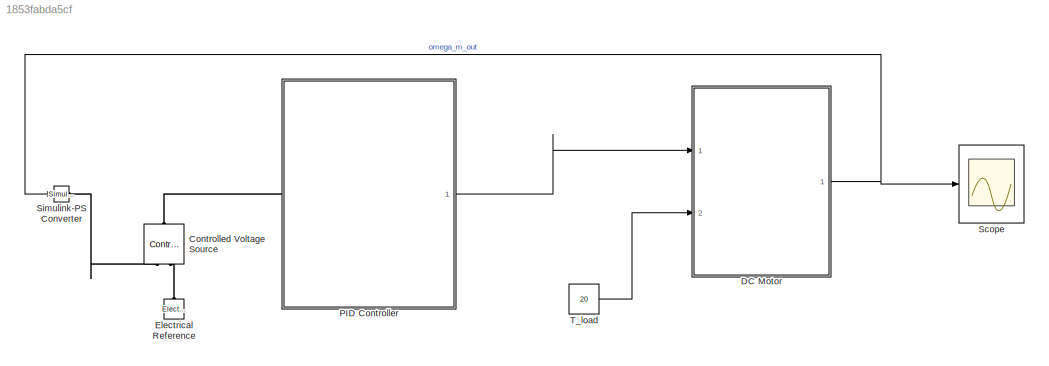
MODEL slx_1853fabda5cf
KIND model
CONFIG AbsTol = auto
CONFIG EnableMultiTasking = off
CONFIG FixedStep = auto
CONFIG MaxStep = auto
CONFIG MinStep = auto
CONFIG RelTol = 1e-3
CONFIG SampleTimeConstraint = Unconstrained
CONFIG SolverName = VariableStepAuto
CONFIG StartTime = 0.0
CONFIG StopTime = 10.0
BLOCK [Reference] Controlled Voltage Source  REF=fl_lib/Electrical/Electrical Sources/Controlled Voltage
Source
  NameLocation = right
  Ports = [0, 0, 0, 0, 0, 1, 2]
  SourceBlock = fl_lib/Electrical/Electrical Sources/Controlled Voltage\nSource
  SourceProductBaseCode = SS
  SourceType = Controlled Voltage\nSource
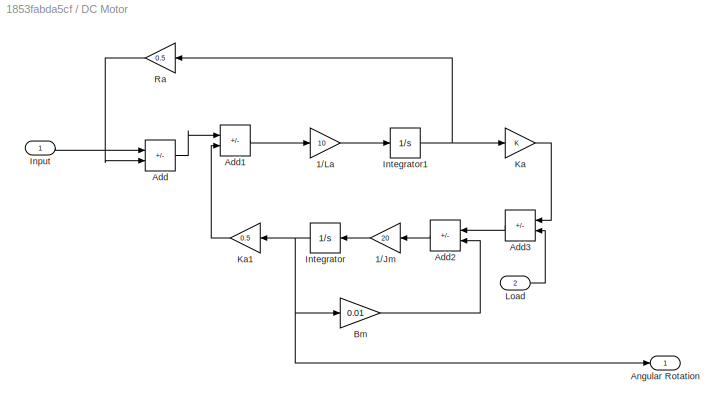
BLOCK [SubSystem] DC Motor
  Ports = [2, 1]
  RequestExecContextInheritance = off
BLOCK [Gain] DC Motor/1//Jm
  Gain = 20
  NameLocation = top
BLOCK [Gain] DC Motor/1//La
  Gain = 10
BLOCK [Sum] DC Motor/Add
  IconShape = rectangular
  Inputs = +-
  Ports = [2, 1]
BLOCK [Sum] DC Motor/Add1
  IconShape = rectangular
  Inputs = +-
  Ports = [2, 1]
BLOCK [Sum] DC Motor/Add2
  IconShape = rectangular
  Inputs = +-
  NameLocation = top
  Ports = [2, 1]
BLOCK [Sum] DC Motor/Add3
  IconShape = rectangular
  Inputs = +-
  NameLocation = top
  Ports = [2, 1]
BLOCK [Outport] DC Motor/Angular Rotation
BLOCK [Gain] DC Motor/Bm
  Gain = 0.01
BLOCK [Inport] DC Motor/Input
BLOCK [Integrator] DC Motor/Integrator
  NameLocation = top
  Ports = [1, 1]
BLOCK [Integrator] DC Motor/Integrator1
  Ports = [1, 1]
BLOCK [Gain] DC Motor/Ka
BLOCK [Gain] DC Motor/Ka1
  Gain = 0.5
  NameLocation = top
BLOCK [Inport] DC Motor/Load
  Port = 2
BLOCK [Gain] DC Motor/Ra
  Gain = 0.5
  NameLocation = top
BLOCK [Reference] Electrical Reference  REF=fl_lib/Electrical/Electrical Elements/Electrical Reference
  NameLocation = right
  Ports = [0, 0, 0, 0, 0, 1]
  SourceBlock = fl_lib/Electrical/Electrical Elements/Electrical Reference
  SourceProductBaseCode = SS
  SourceType = Electrical Reference
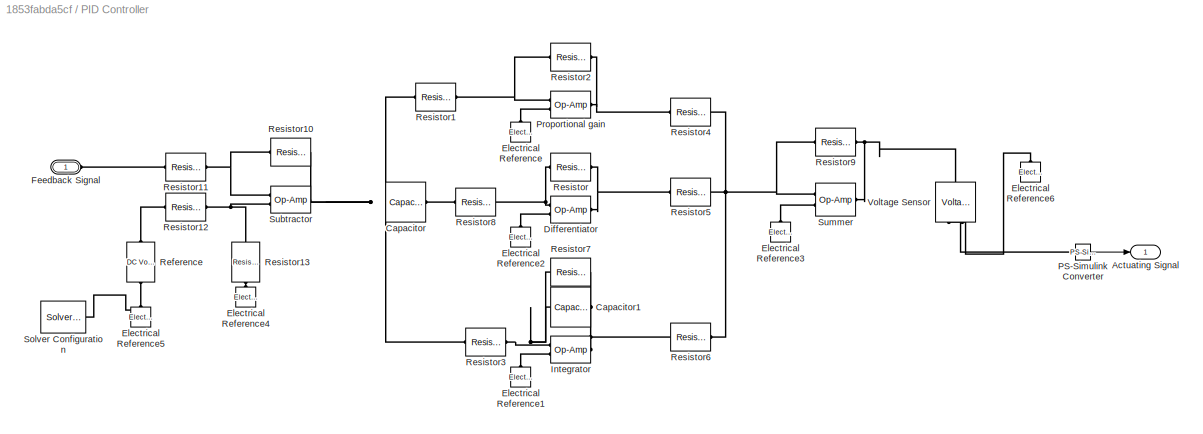
BLOCK [SubSystem] PID Controller
  Ports = [0, 1, 0, 0, 0, 1]
  RequestExecContextInheritance = off
BLOCK [Outport] PID Controller/Actuating Signal
BLOCK [Reference] PID Controller/Capacitor  REF=fl_lib/Electrical/Electrical Elements/Capacitor
  Ports = [0, 0, 0, 0, 0, 1, 1]
  SourceBlock = fl_lib/Electrical/Electrical Elements/Capacitor
  SourceProductBaseCode = SS
  SourceType = Capacitor
BLOCK [Reference] PID Controller/Capacitor1  REF=fl_lib/Electrical/Electrical Elements/Capacitor
  Ports = [0, 0, 0, 0, 0, 1, 1]
  SourceBlock = fl_lib/Electrical/Electrical Elements/Capacitor
  SourceProductBaseCode = SS
  SourceType = Capacitor
BLOCK [Reference] PID Controller/Differentiator  REF=fl_lib/Electrical/Electrical Elements/Op-Amp
  Ports = [0, 0, 0, 0, 0, 2, 1]
  SourceBlock = fl_lib/Electrical/Electrical Elements/Op-Amp
  SourceProductBaseCode = SS
  SourceType = Op-Amp
BLOCK [Reference] PID Controller/Electrical Reference  REF=fl_lib/Electrical/Electrical Elements/Electrical Reference
  NameLocation = right
  Ports = [0, 0, 0, 0, 0, 1]
  SourceBlock = fl_lib/Electrical/Electrical Elements/Electrical Reference
  SourceProductBaseCode = SS
  SourceType = Electrical Reference
BLOCK [Reference] PID Controller/Electrical Reference1  REF=fl_lib/Electrical/Electrical Elements/Electrical Reference
  NameLocation = right
  Ports = [0, 0, 0, 0, 0, 1]
  SourceBlock = fl_lib/Electrical/Electrical Elements/Electrical Reference
  SourceProductBaseCode = SS
  SourceType = Electrical Reference
BLOCK [Reference] PID Controller/Electrical Reference2  REF=fl_lib/Electrical/Electrical Elements/Electrical Reference
  NameLocation = right
  Ports = [0, 0, 0, 0, 0, 1]
  SourceBlock = fl_lib/Electrical/Electrical Elements/Electrical Reference
  SourceProductBaseCode = SS
  SourceType = Electrical Reference
BLOCK [Reference] PID Controller/Electrical Reference3  REF=fl_lib/Electrical/Electrical Elements/Electrical Reference
  NameLocation = right
  Ports = [0, 0, 0, 0, 0, 1]
  SourceBlock = fl_lib/Electrical/Electrical Elements/Electrical Reference
  SourceProductBaseCode = SS
  SourceType = Electrical Reference
BLOCK [Reference] PID Controller/Electrical Reference4  REF=fl_lib/Electrical/Electrical Elements/Electrical Reference
  NameLocation = right
  Ports = [0, 0, 0, 0, 0, 1]
  SourceBlock = fl_lib/Electrical/Electrical Elements/Electrical Reference
  SourceProductBaseCode = SS
  SourceType = Electrical Reference
BLOCK [Reference] PID Controller/Electrical Reference5  REF=fl_lib/Electrical/Electrical Elements/Electrical Reference
  NameLocation = right
  Ports = [0, 0, 0, 0, 0, 1]
  SourceBlock = fl_lib/Electrical/Electrical Elements/Electrical Reference
  SourceProductBaseCode = SS
  SourceType = Electrical Reference
BLOCK [Reference] PID Controller/Electrical Reference6  REF=fl_lib/Electrical/Electrical Elements/Electrical Reference
  NameLocation = right
  Ports = [0, 0, 0, 0, 0, 1]
  SourceBlock = fl_lib/Electrical/Electrical Elements/Electrical Reference
  SourceProductBaseCode = SS
  SourceType = Electrical Reference
BLOCK [PMIOPort] PID Controller/Feedback Signal
  Side = Left
BLOCK [Reference] PID Controller/Integrator  REF=fl_lib/Electrical/Electrical Elements/Op-Amp
  Ports = [0, 0, 0, 0, 0, 2, 1]
  SourceBlock = fl_lib/Electrical/Electrical Elements/Op-Amp
  SourceProductBaseCode = SS
  SourceType = Op-Amp
BLOCK [Reference] PID Controller/PS-Simulink Converter  REF=nesl_utility/PS-Simulink
Converter
  Ports = [0, 1, 0, 0, 0, 1]
  SourceBlock = nesl_utility/PS-Simulink\nConverter
  SourceProductBaseCode = PW,SS
  SourceType = PS-Simulink\nConverter
BLOCK [Reference] PID Controller/Proportional gain  REF=fl_lib/Electrical/Electrical Elements/Op-Amp
  Ports = [0, 0, 0, 0, 0, 2, 1]
  SourceBlock = fl_lib/Electrical/Electrical Elements/Op-Amp
  SourceProductBaseCode = SS
  SourceType = Op-Amp
BLOCK [Reference] PID Controller/Reference  REF=fl_lib/Electrical/Electrical Sources/DC Voltage Source
  NameLocation = left
  Ports = [0, 0, 0, 0, 0, 1, 1]
  SourceBlock = fl_lib/Electrical/Electrical Sources/DC Voltage Source
  SourceProductBaseCode = SS
  SourceType = DC Voltage Source
BLOCK [Reference] PID Controller/Resistor  REF=fl_lib/Electrical/Electrical Elements/Resistor
  Ports = [0, 0, 0, 0, 0, 1, 1]
  SourceBlock = fl_lib/Electrical/Electrical Elements/Resistor
  SourceProductBaseCode = SS
  SourceType = Resistor
BLOCK [Reference] PID Controller/Resistor1  REF=fl_lib/Electrical/Electrical Elements/Resistor
  Ports = [0, 0, 0, 0, 0, 1, 1]
  SourceBlock = fl_lib/Electrical/Electrical Elements/Resistor
  SourceProductBaseCode = SS
  SourceType = Resistor
BLOCK [Reference] PID Controller/Resistor10  REF=fl_lib/Electrical/Electrical Elements/Resistor
  Ports = [0, 0, 0, 0, 0, 1, 1]
  SourceBlock = fl_lib/Electrical/Electrical Elements/Resistor
  SourceProductBaseCode = SS
  SourceType = Resistor
BLOCK [Reference] PID Controller/Resistor11  REF=fl_lib/Electrical/Electrical Elements/Resistor
  Ports = [0, 0, 0, 0, 0, 1, 1]
  SourceBlock = fl_lib/Electrical/Electrical Elements/Resistor
  SourceProductBaseCode = SS
  SourceType = Resistor
BLOCK [Reference] PID Controller/Resistor12  REF=fl_lib/Electrical/Electrical Elements/Resistor
  Ports = [0, 0, 0, 0, 0, 1, 1]
  SourceBlock = fl_lib/Electrical/Electrical Elements/Resistor
  SourceProductBaseCode = SS
  SourceType = Resistor
BLOCK [Reference] PID Controller/Resistor13  REF=fl_lib/Electrical/Electrical Elements/Resistor
  NameLocation = left
  Ports = [0, 0, 0, 0, 0, 1, 1]
  SourceBlock = fl_lib/Electrical/Electrical Elements/Resistor
  SourceProductBaseCode = SS
  SourceType = Resistor
BLOCK [Reference] PID Controller/Resistor2  REF=fl_lib/Electrical/Electrical Elements/Resistor
  Ports = [0, 0, 0, 0, 0, 1, 1]
  SourceBlock = fl_lib/Electrical/Electrical Elements/Resistor
  SourceProductBaseCode = SS
  SourceType = Resistor
BLOCK [Reference] PID Controller/Resistor3  REF=fl_lib/Electrical/Electrical Elements/Resistor
  Ports = [0, 0, 0, 0, 0, 1, 1]
  SourceBlock = fl_lib/Electrical/Electrical Elements/Resistor
  SourceProductBaseCode = SS
  SourceType = Resistor
BLOCK [Reference] PID Controller/Resistor4  REF=fl_lib/Electrical/Electrical Elements/Resistor
  Ports = [0, 0, 0, 0, 0, 1, 1]
  SourceBlock = fl_lib/Electrical/Electrical Elements/Resistor
  SourceProductBaseCode = SS
  SourceType = Resistor
BLOCK [Reference] PID Controller/Resistor5  REF=fl_lib/Electrical/Electrical Elements/Resistor
  Ports = [0, 0, 0, 0, 0, 1, 1]
  SourceBlock = fl_lib/Electrical/Electrical Elements/Resistor
  SourceProductBaseCode = SS
  SourceType = Resistor
BLOCK [Reference] PID Controller/Resistor6  REF=fl_lib/Electrical/Electrical Elements/Resistor
  Ports = [0, 0, 0, 0, 0, 1, 1]
  SourceBlock = fl_lib/Electrical/Electrical Elements/Resistor
  SourceProductBaseCode = SS
  SourceType = Resistor
BLOCK [Reference] PID Controller/Resistor7  REF=fl_lib/Electrical/Electrical Elements/Resistor
  Ports = [0, 0, 0, 0, 0, 1, 1]
  SourceBlock = fl_lib/Electrical/Electrical Elements/Resistor
  SourceProductBaseCode = SS
  SourceType = Resistor
BLOCK [Reference] PID Controller/Resistor8  REF=fl_lib/Electrical/Electrical Elements/Resistor
  Ports = [0, 0, 0, 0, 0, 1, 1]
  SourceBlock = fl_lib/Electrical/Electrical Elements/Resistor
  SourceProductBaseCode = SS
  SourceType = Resistor
BLOCK [Reference] PID Controller/Resistor9  REF=fl_lib/Electrical/Electrical Elements/Resistor
  Ports = [0, 0, 0, 0, 0, 1, 1]
  SourceBlock = fl_lib/Electrical/Electrical Elements/Resistor
  SourceProductBaseCode = SS
  SourceType = Resistor
BLOCK [Reference] PID Controller/Solver Configuration  REF=nesl_utility/Solver
Configuration
  Ports = [0, 0, 0, 0, 0, 0, 1]
  SourceBlock = nesl_utility/Solver\nConfiguration
  SourceProductBaseCode = PW,SS
  SourceType = Solver\nConfiguration
BLOCK [Reference] PID Controller/Subtractor  REF=fl_lib/Electrical/Electrical Elements/Op-Amp
  Ports = [0, 0, 0, 0, 0, 2, 1]
  SourceBlock = fl_lib/Electrical/Electrical Elements/Op-Amp
  SourceProductBaseCode = SS
  SourceType = Op-Amp
BLOCK [Reference] PID Controller/Summer  REF=fl_lib/Electrical/Electrical Elements/Op-Amp
  Ports = [0, 0, 0, 0, 0, 2, 1]
  SourceBlock = fl_lib/Electrical/Electrical Elements/Op-Amp
  SourceProductBaseCode = SS
  SourceType = Op-Amp
BLOCK [Reference] PID Controller/Voltage Sensor  REF=fl_lib/Electrical/Electrical Sensors/Voltage Sensor
  NameLocation = right
  Ports = [0, 0, 0, 0, 0, 1, 2]
  SourceBlock = fl_lib/Electrical/Electrical Sensors/Voltage Sensor
  SourceProductBaseCode = SS
  SourceType = Voltage Sensor
BLOCK [Scope] Scope
  Floating = off
  NumInputPorts = 1
  Ports = [1]
  ScopeSpecificationString = Simulink.scopes.TimeScopeBlockCfg('CurrentConfiguration', extmgr.ConfigurationSet(extmgr.Configuration('Core','General UI',true),extmgr.Configuration('Core','Source UI',true),extmgr.Configuration('Sources','WiredSimulink',true),extmgr.Configuration('Visuals','Time Domain',true,'SerializedDisplays',{struct('MinYLimReal','-14.40623','MaxYLimReal','112.71971','YLabelReal','','MinYLimMag','0.00000','M...<+1341ch>
BLOCK [Reference] Simulink-PS Converter  REF=nesl_utility/Simulink-PS
Converter
  Ports = [1, 0, 0, 0, 0, 0, 1]
  SourceBlock = nesl_utility/Simulink-PS\nConverter
  SourceProductBaseCode = PW,SS
  SourceType = Simulink-PS\nConverter
BLOCK [Constant] T_load
  Value = 20
LINE DC Motor/1//Jm:1 -> DC Motor/Integrator:1
LINE DC Motor/1//La:1 -> DC Motor/Integrator1:1
LINE DC Motor/Add1:1 -> DC Motor/1//La:1
LINE DC Motor/Add2:1 -> DC Motor/1//Jm:1
LINE DC Motor/Add3:1 -> DC Motor/Add2:1
LINE DC Motor/Add:1 -> DC Motor/Add1:1
LINE DC Motor/Bm:1 -> DC Motor/Add2:2
LINE DC Motor/Input:1 -> DC Motor/Add:1
NET DC Motor/Integrator1:1 -> DC Motor/Ka:1, DC Motor/Ra:1
NET DC Motor/Integrator:1 -> DC Motor/Angular Rotation:1, DC Motor/Bm:1, DC Motor/Ka1:1
LINE DC Motor/Ka1:1 -> DC Motor/Add1:2
LINE DC Motor/Ka:1 -> DC Motor/Add3:1
LINE DC Motor/Load:1 -> DC Motor/Add3:2
LINE DC Motor/Ra:1 -> DC Motor/Add:2
NET DC Motor:1 -> Scope:1, Simulink-PS Converter:1
LINE PID Controller/PS-Simulink Converter:1 -> PID Controller/Actuating Signal:1
LINE PID Controller:1 -> DC Motor:1
LINE T_load:1 -> DC Motor:2
PLINE Controlled Voltage Source:LConn1 -- PID Controller:LConn1
PLINE Controlled Voltage Source:RConn1 -- Simulink-PS Converter:RConn1
PLINE Controlled Voltage Source:RConn2 -- Electrical Reference:LConn1
PNET net1: PID Controller/Capacitor1:LConn1 -- PID Controller/Integrator:LConn1 -- PID Controller/Resistor3:RConn1 -- PID Controller/Resistor7:LConn1
PNET net2: PID Controller/Capacitor1:RConn1 -- PID Controller/Integrator:RConn1 -- PID Controller/Resistor6:LConn1 -- PID Controller/Resistor7:RConn1
PNET net3: PID Controller/Capacitor:LConn1 -- PID Controller/Resistor10:RConn1 -- PID Controller/Resistor1:LConn1 -- PID Controller/Resistor3:LConn1 -- PID Controller/Subtractor:RConn1
PLINE PID Controller/Capacitor:RConn1 -- PID Controller/Resistor8:LConn1
PNET net4: PID Controller/Differentiator:LConn1 -- PID Controller/Resistor8:RConn1 -- PID Controller/Resistor:LConn1
PLINE PID Controller/Differentiator:LConn2 -- PID Controller/Electrical Reference2:LConn1
PNET net5: PID Controller/Differentiator:RConn1 -- PID Controller/Resistor5:LConn1 -- PID Controller/Resistor:RConn1
PLINE PID Controller/Electrical Reference1:LConn1 -- PID Controller/Integrator:LConn2
PLINE PID Controller/Electrical Reference3:LConn1 -- PID Controller/Summer:LConn2
PLINE PID Controller/Electrical Reference4:LConn1 -- PID Controller/Resistor13:RConn1
PNET net6: PID Controller/Electrical Reference5:LConn1 -- PID Controller/Reference:RConn1 -- PID Controller/Solver Configuration:RConn1
PLINE PID Controller/Electrical Reference6:LConn1 -- PID Controller/Voltage Sensor:RConn2
PLINE PID Controller/Electrical Reference:LConn1 -- PID Controller/Proportional gain:LConn2
PLINE PID Controller/Feedback Signal:RConn1 -- PID Controller/Resistor11:LConn1
PLINE PID Controller/PS-Simulink Converter:LConn1 -- PID Controller/Voltage Sensor:RConn1
PNET net7: PID Controller/Proportional gain:LConn1 -- PID Controller/Resistor1:RConn1 -- PID Controller/Resistor2:LConn1
PNET net8: PID Controller/Proportional gain:RConn1 -- PID Controller/Resistor2:RConn1 -- PID Controller/Resistor4:LConn1
PLINE PID Controller/Reference:LConn1 -- PID Controller/Resistor12:LConn1
PNET net9: PID Controller/Resistor10:LConn1 -- PID Controller/Resistor11:RConn1 -- PID Controller/Subtractor:LConn1
PNET net10: PID Controller/Resistor12:RConn1 -- PID Controller/Resistor13:LConn1 -- PID Controller/Subtractor:LConn2
PNET net11: PID Controller/Resistor4:RConn1 -- PID Controller/Resistor5:RConn1 -- PID Controller/Resistor6:RConn1 -- PID Controller/Resistor9:LConn1 -- PID Controller/Summer:LConn1
PNET net12: PID Controller/Resistor9:RConn1 -- PID Controller/Summer:RConn1 -- PID Controller/Voltage Sensor:LConn1
note: NET lines group one-source signal fan-out (src -> all destinations, sorted); 1:1 wires keep LINE; PNET lines group multi-terminal physical nets as a canonical sorted terminal list (undirected conserving connections); 2-terminal nets keep the pairwise PLINE form
